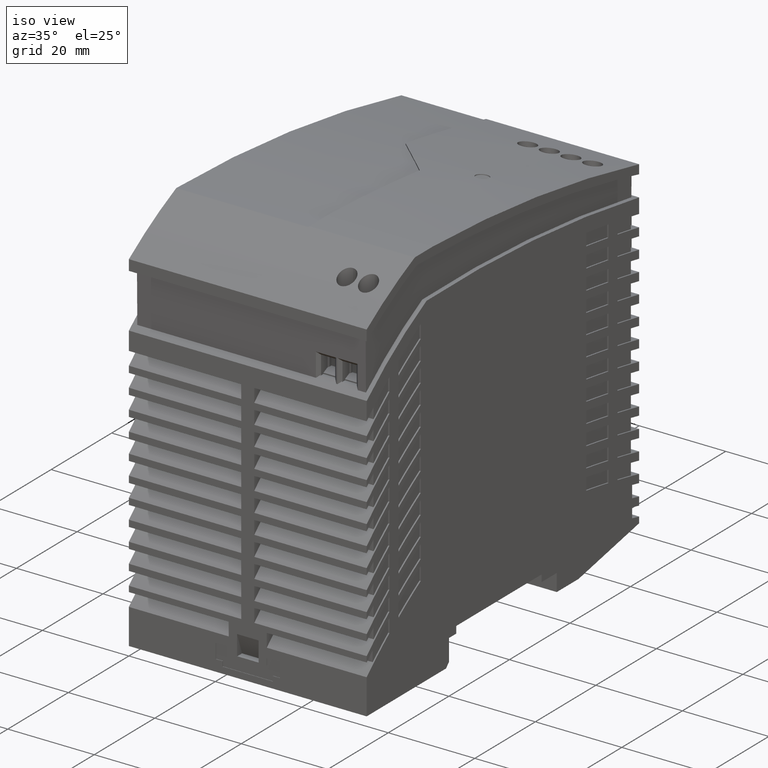
[diagram: clean part render]
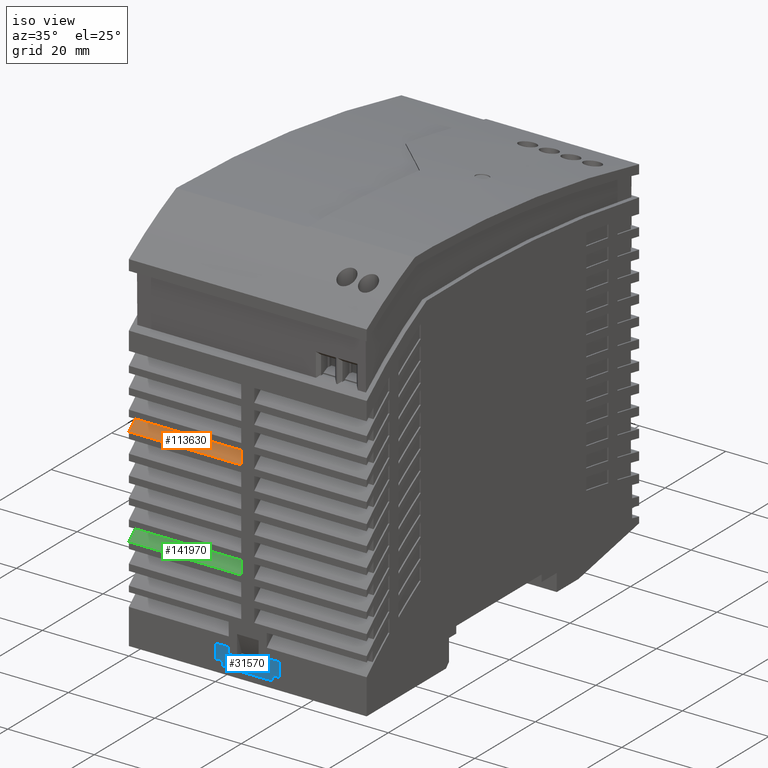
[diagram: same view with three faces highlighted in distinct colors, each labeled with its STEP entity id]
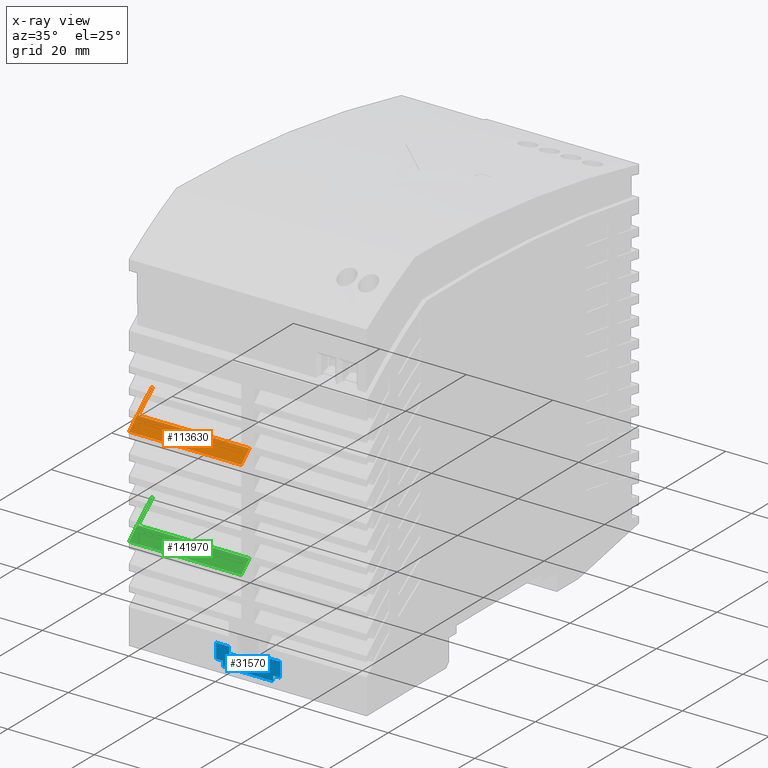
[diagram: x-ray of the same camera — body ghosted, the three highlighted faces saturated]
A machine part, iso view with three faces highlighted in distinct colors.
The next image is the same camera in x-ray (body ghosted, the three faces saturated) — at least one of them is partly hidden behind the body in this view.
Their STEP definitions:

[orange] entity #113630 — the highlighted cylindrical surface (partial cylindrical patch) has radius 111 mm, axis along (1, 0, 0).
#13780=CARTESIAN_POINT('',(30.4869845880638,-36.5590205851661,-54.));
#13790=DIRECTION('',(0.,0.,1.));
#13800=DIRECTION('',(0.,1.,0.));
#13810=AXIS2_PLACEMENT_3D('',#13780,#13790,#13800);
#13820=CIRCLE('',#13810,110.999999999971);
#20050=CARTESIAN_POINT('',(-37.4715236073769,51.2056714261642,-54.));
#20060=VERTEX_POINT('',#20050);
#20090=CARTESIAN_POINT('',(-45.0015236073532,44.8196322079584,-54.));
#20100=VERTEX_POINT('',#20090);
#20110=EDGE_CURVE('',#20060,#20100,#13820,.T.);
#111920=CARTESIAN_POINT('',(-42.3015236073671,47.2433246963184,-53.7));
#111930=VERTEX_POINT('',#111920);
#111960=CARTESIAN_POINT('',(30.4869845880638,-36.5590205851661,-53.7));
#111970=DIRECTION('',(0.,0.,1.));
#111980=DIRECTION('',(0.,1.,0.));
#111990=AXIS2_PLACEMENT_3D('',#111960,#111970,#111980);
#112000=CIRCLE('',#111990,110.999999999971);
#112010=CARTESIAN_POINT('',(-37.4715236073769,51.2056714261642,-53.7));
#112020=VERTEX_POINT('',#112010);
#112030=EDGE_CURVE('',#112020,#111930,#112000,.T.);
#113120=CARTESIAN_POINT('',(-37.4715236073769,51.2056714261643,-53.7));
#113130=DIRECTION('',(0.,0.,-1.));
#113140=VECTOR('',#113130,1.);
#113150=LINE('',#113120,#113140);
#113160=EDGE_CURVE('',#112020,#20060,#113150,.T.);
#113300=CARTESIAN_POINT('',(30.4869845880638,-36.5590205851661,-53.7));
#113310=DIRECTION('',(0.,0.,1.));
#113320=DIRECTION('',(0.,1.,0.));
#113330=AXIS2_PLACEMENT_3D('',#113300,#113310,#113320);
#113340=CYLINDRICAL_SURFACE('',#113330,110.999999999971);
#113350=ORIENTED_EDGE('',*,*,#20110,.T.);
#113360=ORIENTED_EDGE('',*,*,#113160,.T.);
#113370=ORIENTED_EDGE('',*,*,#112030,.F.);
#113380=CARTESIAN_POINT('',(-42.3015236073671,47.2433246963183,-28.));
#113390=DIRECTION('',(0.,0.,-1.));
#113400=VECTOR('',#113390,1.);
#113410=LINE('',#113380,#113400);
#113420=CARTESIAN_POINT('',(-42.3015236073671,47.2433246963184,-28.));
#113430=VERTEX_POINT('',#113420);
#113440=EDGE_CURVE('',#113430,#111930,#113410,.T.);
#113450=ORIENTED_EDGE('',*,*,#113440,.T.);
#113460=CARTESIAN_POINT('',(30.4869845880638,-36.5590205851661,-28.));
#113470=DIRECTION('',(0.,0.,1.));
#113480=DIRECTION('',(0.,1.,0.));
#113490=AXIS2_PLACEMENT_3D('',#113460,#113470,#113480);
#113500=CIRCLE('',#113490,110.999999999971);
#113510=CARTESIAN_POINT('',(-45.0015236073532,44.8196322079584,-28.));
#113520=VERTEX_POINT('',#113510);
#113530=EDGE_CURVE('',#113430,#113520,#113500,.T.);
#113540=ORIENTED_EDGE('',*,*,#113530,.F.);
#113550=CARTESIAN_POINT('',(-45.0015236073532,44.8196322079584,-25.));
#113560=DIRECTION('',(0.,0.,1.));
#113570=VECTOR('',#113560,1.);
#113580=LINE('',#113550,#113570);
#113590=EDGE_CURVE('',#20100,#113520,#113580,.T.);
#113600=ORIENTED_EDGE('',*,*,#113590,.T.);
#113610=EDGE_LOOP('',(#113600,#113540,#113450,#113370,#113360,#113350));
#113620=FACE_OUTER_BOUND('',#113610,.T.);
#113630=ADVANCED_FACE('',(#113620),#113340,.T.);

[blue] entity #31570 — the highlighted planar face has unit normal (0, -1, 0).
#100=CARTESIAN_POINT('',(-44.9013558380695,1.52907227621138,-32.3));
#110=VERTEX_POINT('',#100);
#160=CARTESIAN_POINT('',(-44.9013558380695,1.52907227621138,0.));
#170=DIRECTION('',(0.,0.,1.));
#180=VECTOR('',#170,1.);
#190=LINE('',#160,#180);
#200=CARTESIAN_POINT('',(-44.9013558380695,1.52907227621138,-20.7));
#210=VERTEX_POINT('',#200);
#220=EDGE_CURVE('',#110,#210,#190,.T.);
#1990=CARTESIAN_POINT('',(-44.9013558380695,2.67907227621139,-19.1));
#2000=VERTEX_POINT('',#1990);
#2050=CARTESIAN_POINT('',(-44.9013558380695,0.,-19.1));
#2060=DIRECTION('',(0.,1.,0.));
#2070=VECTOR('',#2060,1.);
#2080=LINE('',#2050,#2070);
#2090=CARTESIAN_POINT('',(-44.9013558380695,6.02907227621138,-19.1));
#2100=VERTEX_POINT('',#2090);
#2110=EDGE_CURVE('',#2000,#2100,#2080,.T.);
#3420=CARTESIAN_POINT('',(-44.9013558380695,4.52907227621135,-30.9));
#3430=VERTEX_POINT('',#3420);
#3480=CARTESIAN_POINT('',(-44.9013558380695,0.,-30.9));
#3490=DIRECTION('',(0.,1.,0.));
#3500=VECTOR('',#3490,1.);
#3510=LINE('',#3480,#3500);
#3520=CARTESIAN_POINT('',(-44.9013558380695,6.02907227621138,-30.9));
#3530=VERTEX_POINT('',#3520);
#3540=EDGE_CURVE('',#3430,#3530,#3510,.T.);
#7470=CARTESIAN_POINT('',(-44.9013558380695,2.67907227621139,-20.7));
#7480=VERTEX_POINT('',#7470);
#7510=CARTESIAN_POINT('',(-44.9013558380695,2.67907227621139,0.));
#7520=DIRECTION('',(0.,0.,1.));
#7530=VECTOR('',#7520,1.);
#7540=LINE('',#7510,#7530);
#7550=EDGE_CURVE('',#7480,#2000,#7540,.T.);
#7830=CARTESIAN_POINT('',(-44.9013558380695,4.52907227621135,-24.));
#7840=VERTEX_POINT('',#7830);
#8010=CARTESIAN_POINT('',(-44.9013558380695,4.52907227621135,-22.1));
#8020=VERTEX_POINT('',#8010);
#8050=CARTESIAN_POINT('',(-44.9013558380695,4.52907227621135,0.));
#8060=DIRECTION('',(0.,0.,1.));
#8070=VECTOR('',#8060,1.);
#8080=LINE('',#8050,#8070);
#8090=EDGE_CURVE('',#7840,#8020,#8080,.T.);
#9310=CARTESIAN_POINT('',(-44.9013558380695,4.52907227621135,0.));
#9320=DIRECTION('',(0.,0.,1.));
#9330=VECTOR('',#9320,1.);
#9340=LINE('',#9310,#9330);
#9350=CARTESIAN_POINT('',(-44.9013558380695,4.52907227621135,-29.));
#9360=VERTEX_POINT('',#9350);
#9370=EDGE_CURVE('',#9360,#7840,#9340,.T.);
#30320=CARTESIAN_POINT('',(-44.9013558380695,2.67907227621139,-33.9));
#30330=VERTEX_POINT('',#30320);
#30380=CARTESIAN_POINT('',(-44.9013558380695,2.67907227621139,0.));
#30390=DIRECTION('',(0.,0.,1.));
#30400=VECTOR('',#30390,1.);
#30410=LINE('',#30380,#30400);
#30420=CARTESIAN_POINT('',(-44.9013558380695,2.67907227621139,-32.3));
#30430=VERTEX_POINT('',#30420);
#30440=EDGE_CURVE('',#30330,#30430,#30410,.T.);
#30970=CARTESIAN_POINT('',(-44.9013558380695,1.28871351612455,
-19.1497018091145));
#30980=DIRECTION('',(-1.,0.,0.));
#30990=DIRECTION('',(0.,1.,0.));
#31000=AXIS2_PLACEMENT_3D('',#30970,#30980,#30990);
#31010=PLANE('',#31000);
#31020=ORIENTED_EDGE('',*,*,#8090,.F.);
#31030=CARTESIAN_POINT('',(-44.9013558380695,0.,-22.1));
#31040=DIRECTION('',(0.,-1.,0.));
#31050=VECTOR('',#31040,1.);
#31060=LINE('',#31030,#31050);
#31070=CARTESIAN_POINT('',(-44.9013558380695,6.02907227621138,-22.1));
#31080=VERTEX_POINT('',#31070);
#31090=EDGE_CURVE('',#31080,#8020,#31060,.T.);
#31100=ORIENTED_EDGE('',*,*,#31090,.T.);
#31110=CARTESIAN_POINT('',(-44.9013558380695,6.02907227621138,0.));
#31120=DIRECTION('',(0.,0.,-1.));
#31130=VECTOR('',#31120,1.);
#31140=LINE('',#31110,#31130);
#31150=EDGE_CURVE('',#2100,#31080,#31140,.T.);
#31160=ORIENTED_EDGE('',*,*,#31150,.T.);
#31170=ORIENTED_EDGE('',*,*,#2110,.T.);
#31180=ORIENTED_EDGE('',*,*,#7550,.T.);
#31190=CARTESIAN_POINT('',(-44.9013558380695,0.,-20.7));
#31200=DIRECTION('',(0.,1.,0.));
#31210=VECTOR('',#31200,1.);
#31220=LINE('',#31190,#31210);
#31230=EDGE_CURVE('',#210,#7480,#31220,.T.);
#31240=ORIENTED_EDGE('',*,*,#31230,.T.);
#31250=ORIENTED_EDGE('',*,*,#220,.T.);
#31260=CARTESIAN_POINT('',(-44.9013558380695,0.,-32.3));
#31270=DIRECTION('',(0.,-1.,0.));
#31280=VECTOR('',#31270,1.);
#31290=LINE('',#31260,#31280);
#31300=EDGE_CURVE('',#30430,#110,#31290,.T.);
#31310=ORIENTED_EDGE('',*,*,#31300,.T.);
#31320=ORIENTED_EDGE('',*,*,#30440,.T.);
#31330=CARTESIAN_POINT('',(-44.9013558380695,0.,-33.9));
#31340=DIRECTION('',(0.,-1.,0.));
#31350=VECTOR('',#31340,1.);
#31360=LINE('',#31330,#31350);
#31370=CARTESIAN_POINT('',(-44.9013558380695,6.02907227621138,-33.9));
#31380=VERTEX_POINT('',#31370);
#31390=EDGE_CURVE('',#31380,#30330,#31360,.T.);
#31400=ORIENTED_EDGE('',*,*,#31390,.T.);
#31410=CARTESIAN_POINT('',(-44.9013558380695,6.02907227621138,0.));
#31420=DIRECTION('',(0.,0.,-1.));
#31430=VECTOR('',#31420,1.);
#31440=LINE('',#31410,#31430);
#31450=EDGE_CURVE('',#3530,#31380,#31440,.T.);
#31460=ORIENTED_EDGE('',*,*,#31450,.T.);
#31470=ORIENTED_EDGE('',*,*,#3540,.T.);
#31480=CARTESIAN_POINT('',(-44.9013558380695,4.52907227621135,0.));
#31490=DIRECTION('',(0.,0.,1.));
#31500=VECTOR('',#31490,1.);
#31510=LINE('',#31480,#31500);
#31520=EDGE_CURVE('',#3430,#9360,#31510,.T.);
#31530=ORIENTED_EDGE('',*,*,#31520,.F.);
#31540=ORIENTED_EDGE('',*,*,#9370,.F.);
#31550=EDGE_LOOP('',(#31540,#31530,#31470,#31460,#31400,#31320,#31310,
#31250,#31240,#31180,#31170,#31160,#31100,#31020));
#31560=FACE_OUTER_BOUND('',#31550,.T.);
#31570=ADVANCED_FACE('',(#31560),#31010,.T.);

[green] entity #141970 — the highlighted cylindrical surface (partial cylindrical patch) has radius 111 mm, axis along (1, 0, 0).
#18460=CARTESIAN_POINT('',(30.4869845880766,-59.5590205851816,-54.));
#18470=DIRECTION('',(0.,0.,1.));
#18480=DIRECTION('',(0.,1.,0.));
#18490=AXIS2_PLACEMENT_3D('',#18460,#18470,#18480);
#18500=CIRCLE('',#18490,110.99999999999);
#21050=CARTESIAN_POINT('',(-37.4715236073768,28.2056714261642,-54.));
#21060=VERTEX_POINT('',#21050);
#21090=CARTESIAN_POINT('',(-45.0015236073532,21.8196322079584,-54.));
#21100=VERTEX_POINT('',#21090);
#21110=EDGE_CURVE('',#21060,#21100,#18500,.T.);
#140560=CARTESIAN_POINT('',(-37.4715236073769,28.2056714261642,-53.7));
#140570=VERTEX_POINT('',#140560);
#140730=CARTESIAN_POINT('',(-42.3015236073671,24.2433246963183,-53.7));
#140740=VERTEX_POINT('',#140730);
#140770=CARTESIAN_POINT('',(30.4869845880766,-59.5590205851816,-53.7));
#140780=DIRECTION('',(0.,0.,1.));
#140790=DIRECTION('',(0.,1.,0.));
#140800=AXIS2_PLACEMENT_3D('',#140770,#140780,#140790);
#140810=CIRCLE('',#140800,110.99999999999);
#140820=EDGE_CURVE('',#140570,#140740,#140810,.T.);
#141460=CARTESIAN_POINT('',(-37.4715236073768,28.2056714261642,-53.7));
#141470=DIRECTION('',(0.,0.,-1.));
#141480=VECTOR('',#141470,1.);
#141490=LINE('',#141460,#141480);
#141500=EDGE_CURVE('',#140570,#21060,#141490,.T.);
#141640=CARTESIAN_POINT('',(30.4869845880766,-59.5590205851816,-53.7));
#141650=DIRECTION('',(0.,0.,1.));
#141660=DIRECTION('',(0.,1.,0.));
#141670=AXIS2_PLACEMENT_3D('',#141640,#141650,#141660);
#141680=CYLINDRICAL_SURFACE('',#141670,110.99999999999);
#141690=ORIENTED_EDGE('',*,*,#21110,.T.);
#141700=ORIENTED_EDGE('',*,*,#141500,.T.);
#141710=ORIENTED_EDGE('',*,*,#140820,.F.);
#141720=CARTESIAN_POINT('',(-42.3015236073671,24.2433246963183,-28.));
#141730=DIRECTION('',(0.,0.,-1.));
#141740=VECTOR('',#141730,1.);
#141750=LINE('',#141720,#141740);
#141760=CARTESIAN_POINT('',(-42.3015236073671,24.2433246963183,-28.));
#141770=VERTEX_POINT('',#141760);
#141780=EDGE_CURVE('',#141770,#140740,#141750,.T.);
#141790=ORIENTED_EDGE('',*,*,#141780,.T.);
#141800=CARTESIAN_POINT('',(30.4869845880766,-59.5590205851816,-28.));
#141810=DIRECTION('',(0.,0.,1.));
#141820=DIRECTION('',(0.,1.,0.));
#141830=AXIS2_PLACEMENT_3D('',#141800,#141810,#141820);
#141840=CIRCLE('',#141830,110.99999999999);
#141850=CARTESIAN_POINT('',(-45.0015236073532,21.8196322079584,-28.));
#141860=VERTEX_POINT('',#141850);
#141870=EDGE_CURVE('',#141770,#141860,#141840,.T.);
#141880=ORIENTED_EDGE('',*,*,#141870,.F.);
#141890=CARTESIAN_POINT('',(-45.0015236073532,21.8196322079584,-25.));
#141900=DIRECTION('',(0.,0.,1.));
#141910=VECTOR('',#141900,1.);
#141920=LINE('',#141890,#141910);
#141930=EDGE_CURVE('',#21100,#141860,#141920,.T.);
#141940=ORIENTED_EDGE('',*,*,#141930,.T.);
#141950=EDGE_LOOP('',(#141940,#141880,#141790,#141710,#141700,#141690));
#141960=FACE_OUTER_BOUND('',#141950,.T.);
#141970=ADVANCED_FACE('',(#141960),#141680,.T.);